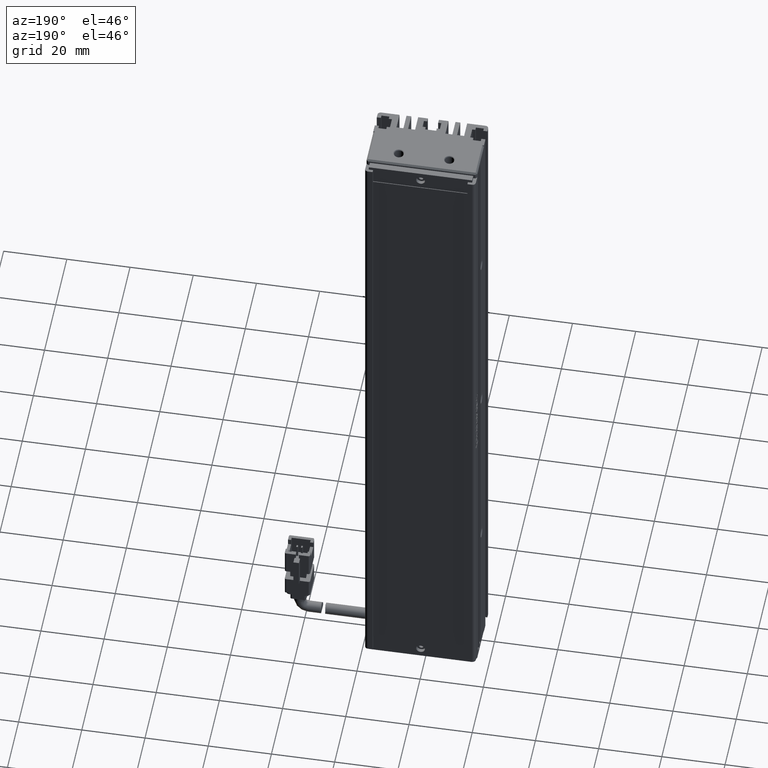
[diagram: clean part render]
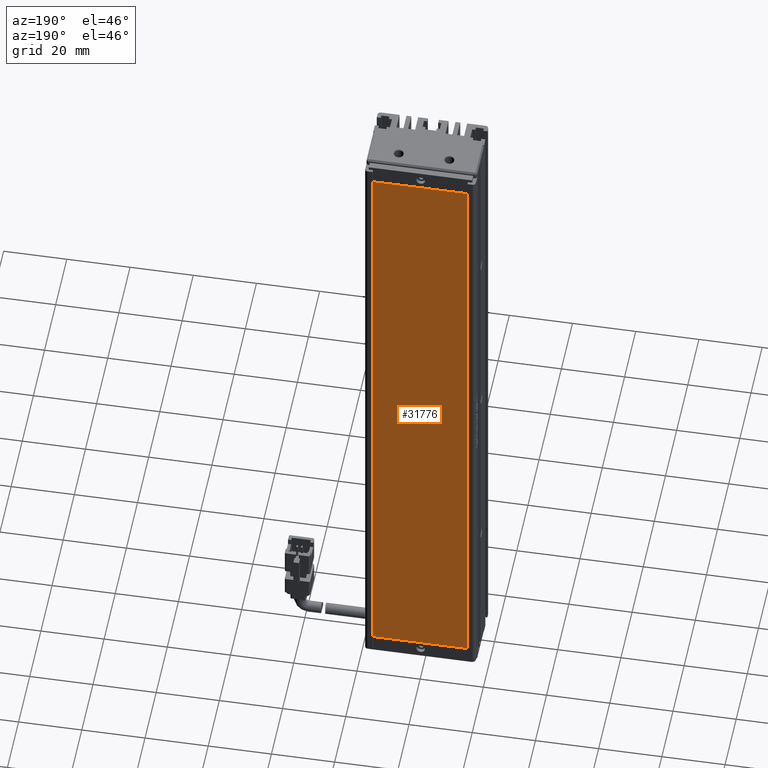
[diagram: same view with one face highlighted and labeled with its STEP entity id]
A machine part, auxiliary view. The second image highlights one B-rep face of the part: STEP entity #31776.
In plain terms, the highlighted planar face has unit normal (0, 1, 0).
Its self-contained STEP definition (entity closure, byte-faithful):
#1119 = CARTESIAN_POINT ( 'NONE',  ( 55.92537974683542500, 34.29073232304837400, -115.0000000000000000 ) ) ;
#6087 = DIRECTION ( 'NONE',  ( -1.000000000000000000, 0.0000000000000000000, 0.0000000000000000000 ) ) ;
#7213 = VERTEX_POINT ( 'NONE', #66367 ) ;
#7662 = EDGE_CURVE ( 'NONE', #61752, #7213, #23027, .T. ) ;
#8112 = FACE_OUTER_BOUND ( 'NONE', #69296, .T. ) ;
#10884 = ORIENTED_EDGE ( 'NONE', *, *, #90452, .T. ) ;
#10992 = CARTESIAN_POINT ( 'NONE',  ( 25.96295586274039000, 34.29073232304837400, -217.0000000000000000 ) ) ;
#11066 = CARTESIAN_POINT ( 'NONE',  ( 55.96295586274041500, 34.29073232304837400, -13.00000000000001100 ) ) ;
#11848 = CARTESIAN_POINT ( 'NONE',  ( 55.92537974683542500, 34.29073232304837400, -217.0000000000000000 ) ) ;
#12375 = ORIENTED_EDGE ( 'NONE', *, *, #7662, .T. ) ;
#15736 = ORIENTED_EDGE ( 'NONE', *, *, #76896, .T. ) ;
#15811 = LINE ( 'NONE', #88112, #36679 ) ;
#16263 = VERTEX_POINT ( 'NONE', #11066 ) ;
#23027 = LINE ( 'NONE', #24114, #83346 ) ;
#24114 = CARTESIAN_POINT ( 'NONE',  ( 25.96295586274039000, 34.29073232304837400, -217.0000000000000000 ) ) ;
#25580 = LINE ( 'NONE', #26552, #81429 ) ;
#26248 = VECTOR ( 'NONE', #84161, 1000.000000000000100 ) ;
#26552 = CARTESIAN_POINT ( 'NONE',  ( 55.92537974683542500, 34.29073232304837400, -217.0000000000000000 ) ) ;
#28063 = CARTESIAN_POINT ( 'NONE',  ( 55.92537974683542500, 34.29073232304837400, -115.0000000000000000 ) ) ;
#31776 = ADVANCED_FACE ( 'NONE', ( #8112 ), #78037, .T. ) ;
#32104 = DIRECTION ( 'NONE',  ( 1.000000000000000000, 0.0000000000000000000, 0.0000000000000000000 ) ) ;
#36107 = CARTESIAN_POINT ( 'NONE',  ( 0.0000000000000000000, 34.29073232304837400, 0.0000000000000000000 ) ) ;
#36679 = VECTOR ( 'NONE', #32104, 1000.000000000000000 ) ;
#43154 = DIRECTION ( 'NONE',  ( 0.0000000000000000000, 1.000000000000000000, 0.0000000000000000000 ) ) ;
#43425 = VERTEX_POINT ( 'NONE', #11848 ) ;
#43626 = DIRECTION ( 'NONE',  ( 0.0000000000000000000, 0.0000000000000000000, -1.000000000000000000 ) ) ;
#43718 = DIRECTION ( 'NONE',  ( 0.0000000000000000000, -0.0000000000000000000, 1.000000000000000000 ) ) ;
#44992 = EDGE_CURVE ( 'NONE', #64649, #43425, #84999, .T. ) ;
#45904 = ORIENTED_EDGE ( 'NONE', *, *, #78385, .T. ) ;
#61215 = AXIS2_PLACEMENT_3D ( 'NONE', #36107, #43154, #43718 ) ;
#61752 = VERTEX_POINT ( 'NONE', #10992 ) ;
#63455 = LINE ( 'NONE', #71043, #26248 ) ;
#64649 = VERTEX_POINT ( 'NONE', #28063 ) ;
#66066 = DIRECTION ( 'NONE',  ( 0.0000000000000000000, 0.0000000000000000000, 1.000000000000000000 ) ) ;
#66367 = CARTESIAN_POINT ( 'NONE',  ( 25.96295586274041500, 34.29073232304837400, -13.00000000000001100 ) ) ;
#69296 = EDGE_LOOP ( 'NONE', ( #10884, #72368, #15736, #12375, #45904 ) ) ;
#69701 = VECTOR ( 'NONE', #43626, 1000.000000000000000 ) ;
#71043 = CARTESIAN_POINT ( 'NONE',  ( 55.96295586274041500, 34.29073232304837400, -13.00000000000001100 ) ) ;
#72368 = ORIENTED_EDGE ( 'NONE', *, *, #44992, .T. ) ;
#76896 = EDGE_CURVE ( 'NONE', #43425, #61752, #25580, .T. ) ;
#78037 = PLANE ( 'NONE',  #61215 ) ;
#78385 = EDGE_CURVE ( 'NONE', #7213, #16263, #15811, .T. ) ;
#81429 = VECTOR ( 'NONE', #6087, 1000.000000000000000 ) ;
#83346 = VECTOR ( 'NONE', #66066, 1000.000000000000000 ) ;
#84161 = DIRECTION ( 'NONE',  ( -0.0003683932681881996800, 0.0000000000000000000, -0.9999999321431976000 ) ) ;
#84999 = LINE ( 'NONE', #1119, #69701 ) ;
#88112 = CARTESIAN_POINT ( 'NONE',  ( 25.96295586274041500, 34.29073232304837400, -13.00000000000001100 ) ) ;
#90452 = EDGE_CURVE ( 'NONE', #16263, #64649, #63455, .T. ) ;